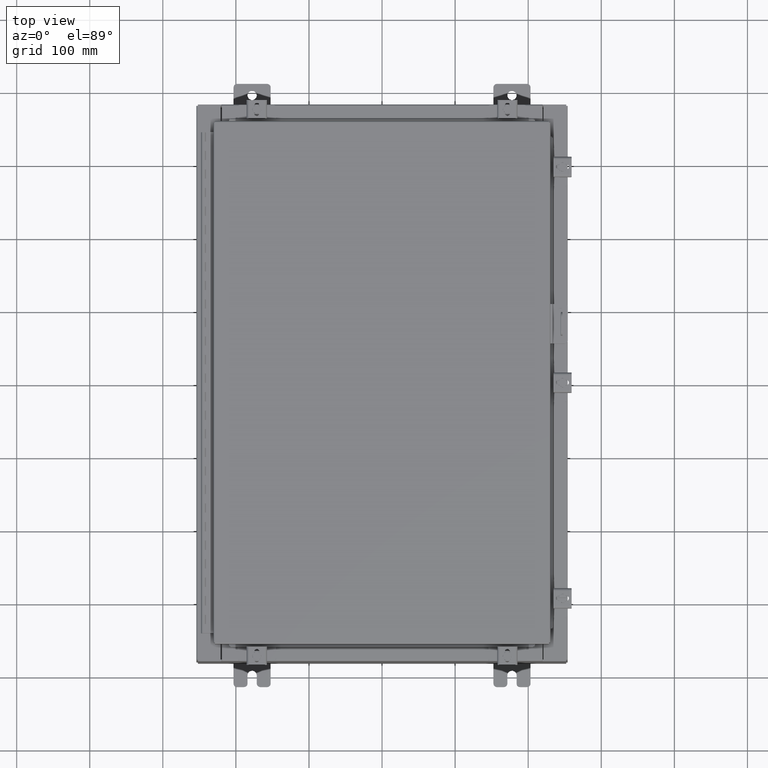
[diagram: clean part render]
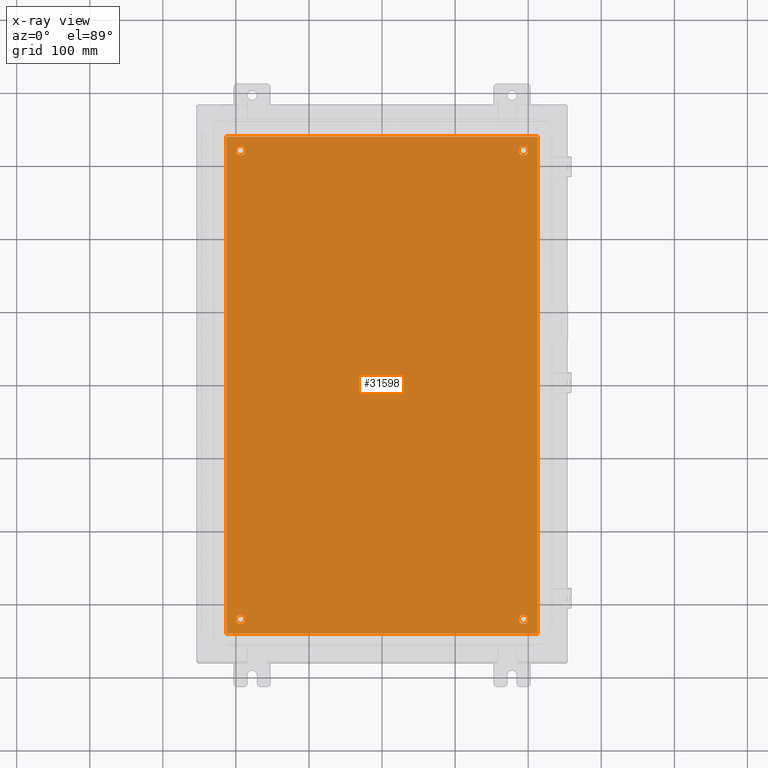
[diagram: x-ray — body ghosted, one internal face saturated and labeled with its STEP entity id]
A machine part, top view, then the same camera in x-ray: the body is ghosted and one INTERNAL B-rep face — a face not visible from any outside direction — is saturated and labeled: STEP entity #31598.
In plain terms, the highlighted planar face has unit normal (0, 0, -1).
Its self-contained STEP definition (entity closure, byte-faithful):
#442 = FACE_OUTER_BOUND ( 'NONE', #20648, .T. ) ;
#675 = EDGE_CURVE ( 'NONE', #31410, #5616, #32312, .T. ) ;
#1156 = ORIENTED_EDGE ( 'NONE', *, *, #25104, .T. ) ;
#1363 = FACE_BOUND ( 'NONE', #17488, .T. ) ;
#1520 = PLANE ( 'NONE',  #34331 ) ;
#2146 = EDGE_CURVE ( 'NONE', #27975, #25092, #25914, .T. ) ;
#2439 = ORIENTED_EDGE ( 'NONE', *, *, #11160, .T. ) ;
#3097 = EDGE_CURVE ( 'NONE', #21885, #28803, #10445, .T. ) ;
#3414 = CIRCLE ( 'NONE', #24459, 0.2499999999999987000 ) ;
#3677 = ORIENTED_EDGE ( 'NONE', *, *, #25553, .F. ) ;
#3681 = VECTOR ( 'NONE', #30147, 39.37007874015748100 ) ;
#4512 = ORIENTED_EDGE ( 'NONE', *, *, #2146, .T. ) ;
#4637 = DIRECTION ( 'NONE',  ( -0.0000000000000000000, -0.0000000000000000000, 1.000000000000000000 ) ) ;
#5204 = VECTOR ( 'NONE', #8588, 39.37007874015748100 ) ;
#5398 = AXIS2_PLACEMENT_3D ( 'NONE', #8254, #28547, #11159 ) ;
#5616 = VERTEX_POINT ( 'NONE', #30197 ) ;
#6463 = VERTEX_POINT ( 'NONE', #13388 ) ;
#6508 = ORIENTED_EDGE ( 'NONE', *, *, #21397, .F. ) ;
#6757 = ORIENTED_EDGE ( 'NONE', *, *, #3097, .F. ) ;
#7271 = CARTESIAN_POINT ( 'NONE',  ( 0.0000000000000000000, 0.0000000000000000000, -0.1039999999999999800 ) ) ;
#8051 = FACE_BOUND ( 'NONE', #34281, .T. ) ;
#8254 = CARTESIAN_POINT ( 'NONE',  ( -7.625000000000002700, -12.62500000000000200, -0.1039999999999999800 ) ) ;
#8463 = CARTESIAN_POINT ( 'NONE',  ( -8.500000000000000000, -13.38299999999999400, -0.1040000000000009100 ) ) ;
#8588 = DIRECTION ( 'NONE',  ( 1.000000000000000000, -0.0000000000000000000, -0.0000000000000000000 ) ) ;
#8993 = DIRECTION ( 'NONE',  ( -0.0000000000000000000, -0.0000000000000000000, 1.000000000000000000 ) ) ;
#9327 = VERTEX_POINT ( 'NONE', #35703 ) ;
#9742 = CARTESIAN_POINT ( 'NONE',  ( 8.383000000000002700, -13.38299999999999200, -0.1039999999999992700 ) ) ;
#10065 = EDGE_LOOP ( 'NONE', ( #2439, #23678 ) ) ;
#10095 = AXIS2_PLACEMENT_3D ( 'NONE', #21229, #21490, #24257 ) ;
#10221 = CARTESIAN_POINT ( 'NONE',  ( 8.383000000000002700, 13.38300000000000100, -0.1039999999999992700 ) ) ;
#10373 = ORIENTED_EDGE ( 'NONE', *, *, #28601, .T. ) ;
#10445 = LINE ( 'NONE', #30319, #3681 ) ;
#11159 = DIRECTION ( 'NONE',  ( -1.000000000000000000, 0.0000000000000000000, 0.0000000000000000000 ) ) ;
#11160 = EDGE_CURVE ( 'NONE', #9327, #20070, #17100, .T. ) ;
#11416 = ORIENTED_EDGE ( 'NONE', *, *, #18893, .T. ) ;
#12050 = DIRECTION ( 'NONE',  ( -0.0000000000000000000, -0.0000000000000000000, 1.000000000000000000 ) ) ;
#12071 = VERTEX_POINT ( 'NONE', #18184 ) ;
#12174 = DIRECTION ( 'NONE',  ( -0.0000000000000000000, -0.0000000000000000000, 1.000000000000000000 ) ) ;
#12176 = VERTEX_POINT ( 'NONE', #10221 ) ;
#12631 = VECTOR ( 'NONE', #30351, 39.37007874015748100 ) ;
#12672 = ORIENTED_EDGE ( 'NONE', *, *, #675, .T. ) ;
#12980 = CARTESIAN_POINT ( 'NONE',  ( 8.500000000000001800, 13.38300000000000300, -0.1040000000000009100 ) ) ;
#13067 = DIRECTION ( 'NONE',  ( -1.000000000000000000, 0.0000000000000000000, -0.0000000000000000000 ) ) ;
#13388 = CARTESIAN_POINT ( 'NONE',  ( 7.375000000000004400, 12.62500000000000200, -0.1039999999999999800 ) ) ;
#14882 = EDGE_CURVE ( 'NONE', #20070, #9327, #32331, .T. ) ;
#15215 = CARTESIAN_POINT ( 'NONE',  ( 7.625000000000002700, 12.62500000000000200, -0.1039999999999999800 ) ) ;
#15563 = DIRECTION ( 'NONE',  ( 0.0000000000000000000, 1.000000000000000000, 0.0000000000000000000 ) ) ;
#15620 = CARTESIAN_POINT ( 'NONE',  ( 7.625000000000002700, -12.62500000000000200, -0.1039999999999999800 ) ) ;
#15789 = FACE_BOUND ( 'NONE', #10065, .T. ) ;
#16000 = DIRECTION ( 'NONE',  ( -1.000000000000000000, 0.0000000000000000000, 0.0000000000000000000 ) ) ;
#16122 = DIRECTION ( 'NONE',  ( -0.0000000000000000000, -0.0000000000000000000, 1.000000000000000000 ) ) ;
#16670 = FACE_BOUND ( 'NONE', #26168, .T. ) ;
#17100 = CIRCLE ( 'NONE', #18926, 0.2499999999999998100 ) ;
#17488 = EDGE_LOOP ( 'NONE', ( #20319, #4512 ) ) ;
#17878 = CARTESIAN_POINT ( 'NONE',  ( -7.375000000000003600, -12.62500000000000200, -0.1039999999999999800 ) ) ;
#18116 = DIRECTION ( 'NONE',  ( -1.000000000000000000, 0.0000000000000000000, 0.0000000000000000000 ) ) ;
#18184 = CARTESIAN_POINT ( 'NONE',  ( 8.383000000000002700, -13.38299999999999200, -0.1039999999999992700 ) ) ;
#18893 = EDGE_CURVE ( 'NONE', #19988, #6463, #28030, .T. ) ;
#18926 = AXIS2_PLACEMENT_3D ( 'NONE', #29432, #12050, #32341 ) ;
#18996 = VECTOR ( 'NONE', #15563, 39.37007874015748100 ) ;
#19214 = ORIENTED_EDGE ( 'NONE', *, *, #31030, .F. ) ;
#19988 = VERTEX_POINT ( 'NONE', #22868 ) ;
#20070 = VERTEX_POINT ( 'NONE', #29216 ) ;
#20202 = CARTESIAN_POINT ( 'NONE',  ( 7.375000000000004400, -12.62500000000000200, -0.1039999999999999800 ) ) ;
#20319 = ORIENTED_EDGE ( 'NONE', *, *, #36348, .T. ) ;
#20346 = LINE ( 'NONE', #12980, #12631 ) ;
#20526 = CIRCLE ( 'NONE', #5398, 0.2499999999999998100 ) ;
#20648 = EDGE_LOOP ( 'NONE', ( #3677, #6757, #19214, #6508 ) ) ;
#20705 = CARTESIAN_POINT ( 'NONE',  ( -8.383000000000000900, 13.38300000000000100, -0.1039999999999998300 ) ) ;
#21005 = AXIS2_PLACEMENT_3D ( 'NONE', #26347, #8993, #29270 ) ;
#21229 = CARTESIAN_POINT ( 'NONE',  ( -7.625000000000002700, -12.62500000000000200, -0.1039999999999999800 ) ) ;
#21397 = EDGE_CURVE ( 'NONE', #12071, #12176, #26708, .T. ) ;
#21490 = DIRECTION ( 'NONE',  ( -0.0000000000000000000, -0.0000000000000000000, 1.000000000000000000 ) ) ;
#21858 = AXIS2_PLACEMENT_3D ( 'NONE', #29542, #12174, #32462 ) ;
#21885 = VERTEX_POINT ( 'NONE', #20705 ) ;
#21957 = CARTESIAN_POINT ( 'NONE',  ( 7.625000000000002700, -12.62500000000000200, -0.1039999999999999800 ) ) ;
#22868 = CARTESIAN_POINT ( 'NONE',  ( 7.875000000000001800, 12.62500000000000200, -0.1039999999999999800 ) ) ;
#23678 = ORIENTED_EDGE ( 'NONE', *, *, #14882, .T. ) ;
#23786 = AXIS2_PLACEMENT_3D ( 'NONE', #21957, #4637, #24869 ) ;
#24257 = DIRECTION ( 'NONE',  ( -1.000000000000000000, 0.0000000000000000000, 0.0000000000000000000 ) ) ;
#24459 = AXIS2_PLACEMENT_3D ( 'NONE', #15215, #35495, #18116 ) ;
#24869 = DIRECTION ( 'NONE',  ( -1.000000000000000000, 0.0000000000000000000, 0.0000000000000000000 ) ) ;
#25092 = VERTEX_POINT ( 'NONE', #26624 ) ;
#25104 = EDGE_CURVE ( 'NONE', #6463, #19988, #3414, .T. ) ;
#25553 = EDGE_CURVE ( 'NONE', #28803, #12071, #28294, .T. ) ;
#25914 = CIRCLE ( 'NONE', #29762, 0.2499999999999987000 ) ;
#26168 = EDGE_LOOP ( 'NONE', ( #11416, #1156 ) ) ;
#26347 = CARTESIAN_POINT ( 'NONE',  ( -7.625000000000002700, 12.62500000000000200, -0.1039999999999999800 ) ) ;
#26624 = CARTESIAN_POINT ( 'NONE',  ( 7.875000000000001800, -12.62500000000000200, -0.1039999999999999800 ) ) ;
#26708 = LINE ( 'NONE', #9742, #18996 ) ;
#27975 = VERTEX_POINT ( 'NONE', #20202 ) ;
#28030 = CIRCLE ( 'NONE', #21858, 0.2499999999999987000 ) ;
#28294 = LINE ( 'NONE', #8463, #5204 ) ;
#28547 = DIRECTION ( 'NONE',  ( -0.0000000000000000000, -0.0000000000000000000, 1.000000000000000000 ) ) ;
#28601 = EDGE_CURVE ( 'NONE', #5616, #31410, #20526, .T. ) ;
#28803 = VERTEX_POINT ( 'NONE', #32320 ) ;
#29216 = CARTESIAN_POINT ( 'NONE',  ( -7.875000000000002700, 12.62500000000000200, -0.1039999999999999800 ) ) ;
#29270 = DIRECTION ( 'NONE',  ( -1.000000000000000000, 0.0000000000000000000, 0.0000000000000000000 ) ) ;
#29432 = CARTESIAN_POINT ( 'NONE',  ( -7.625000000000002700, 12.62500000000000200, -0.1039999999999999800 ) ) ;
#29542 = CARTESIAN_POINT ( 'NONE',  ( 7.625000000000002700, 12.62500000000000200, -0.1039999999999999800 ) ) ;
#29762 = AXIS2_PLACEMENT_3D ( 'NONE', #15620, #16122, #16000 ) ;
#30147 = DIRECTION ( 'NONE',  ( 0.0000000000000000000, -1.000000000000000000, 0.0000000000000000000 ) ) ;
#30197 = CARTESIAN_POINT ( 'NONE',  ( -7.875000000000002700, -12.62500000000000200, -0.1039999999999999800 ) ) ;
#30319 = CARTESIAN_POINT ( 'NONE',  ( -8.383000000000000900, 13.38300000000000100, -0.1039999999999998300 ) ) ;
#30351 = DIRECTION ( 'NONE',  ( -1.000000000000000000, -0.0000000000000000000, -0.0000000000000000000 ) ) ;
#30443 = DIRECTION ( 'NONE',  ( 0.0000000000000000000, 0.0000000000000000000, -1.000000000000000000 ) ) ;
#31030 = EDGE_CURVE ( 'NONE', #12176, #21885, #20346, .T. ) ;
#31410 = VERTEX_POINT ( 'NONE', #17878 ) ;
#31598 = ADVANCED_FACE ( 'NONE', ( #8051, #1363, #16670, #15789, #442 ), #1520, .T. ) ;
#32312 = CIRCLE ( 'NONE', #10095, 0.2499999999999998100 ) ;
#32320 = CARTESIAN_POINT ( 'NONE',  ( -8.383000000000000900, -13.38299999999999400, -0.1040000000000009100 ) ) ;
#32331 = CIRCLE ( 'NONE', #21005, 0.2499999999999998100 ) ;
#32341 = DIRECTION ( 'NONE',  ( -1.000000000000000000, 0.0000000000000000000, 0.0000000000000000000 ) ) ;
#32462 = DIRECTION ( 'NONE',  ( -1.000000000000000000, 0.0000000000000000000, 0.0000000000000000000 ) ) ;
#34281 = EDGE_LOOP ( 'NONE', ( #12672, #10373 ) ) ;
#34331 = AXIS2_PLACEMENT_3D ( 'NONE', #7271, #30443, #13067 ) ;
#35495 = DIRECTION ( 'NONE',  ( -0.0000000000000000000, -0.0000000000000000000, 1.000000000000000000 ) ) ;
#35703 = CARTESIAN_POINT ( 'NONE',  ( -7.375000000000003600, 12.62500000000000200, -0.1039999999999999800 ) ) ;
#36348 = EDGE_CURVE ( 'NONE', #25092, #27975, #36786, .T. ) ;
#36786 = CIRCLE ( 'NONE', #23786, 0.2499999999999987000 ) ;